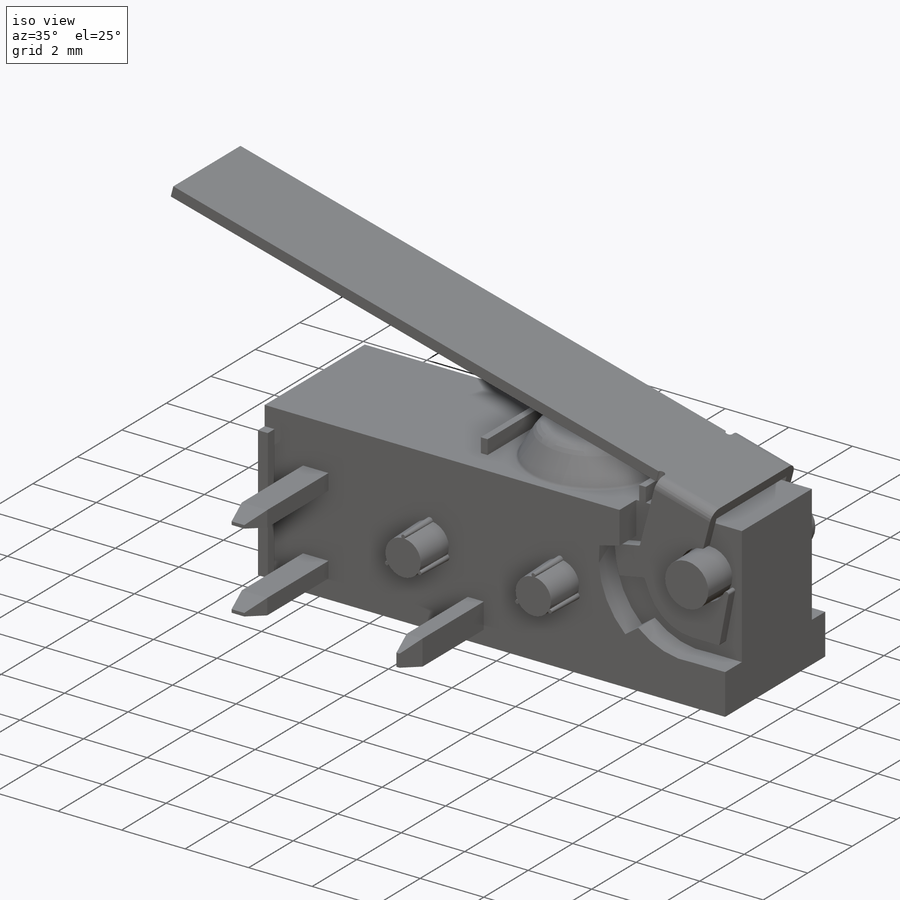
[diagram: iso view]
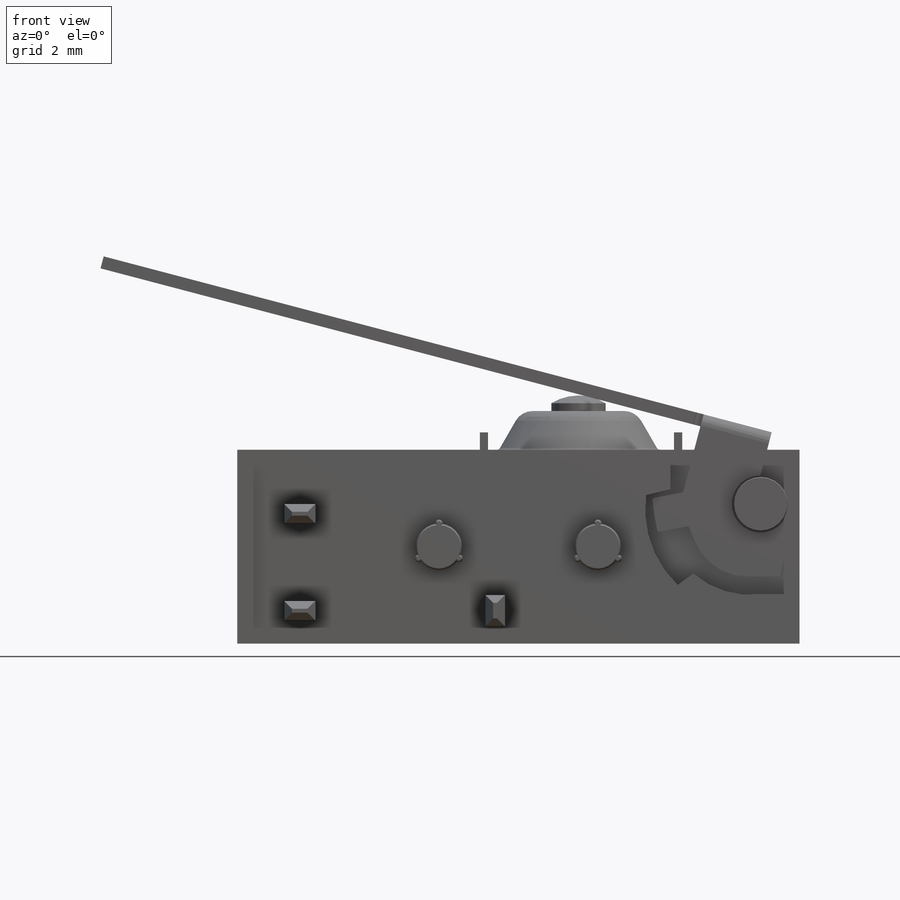
[diagram: front view]
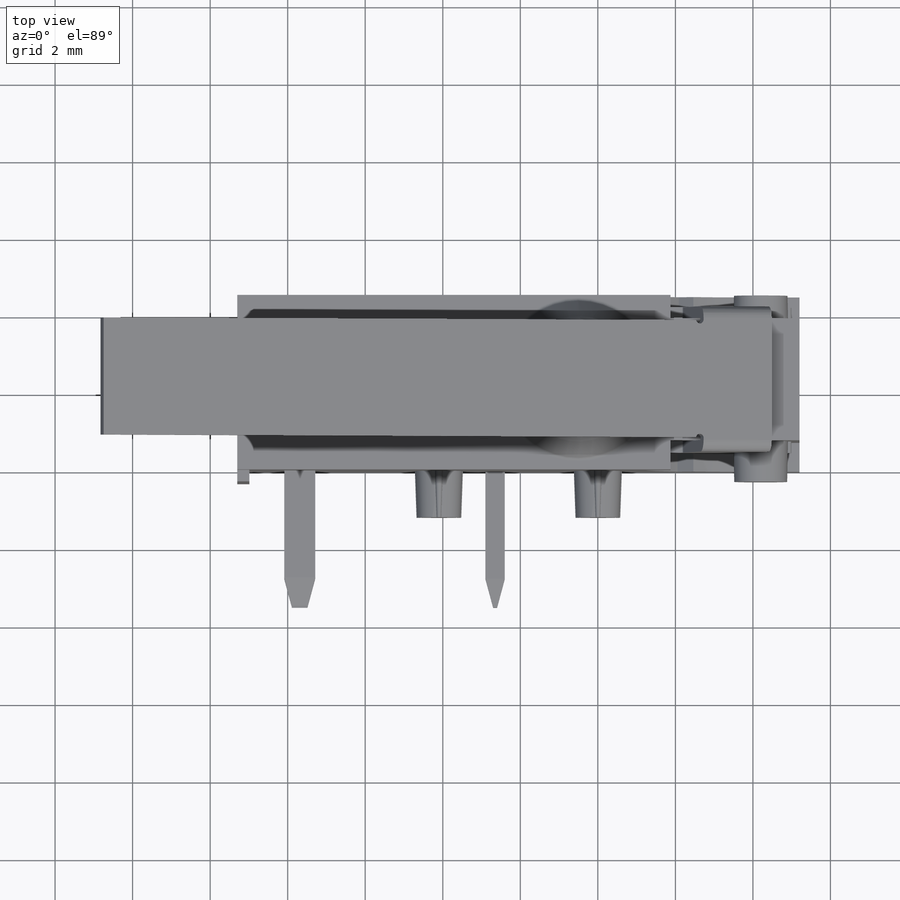
[diagram: top view]
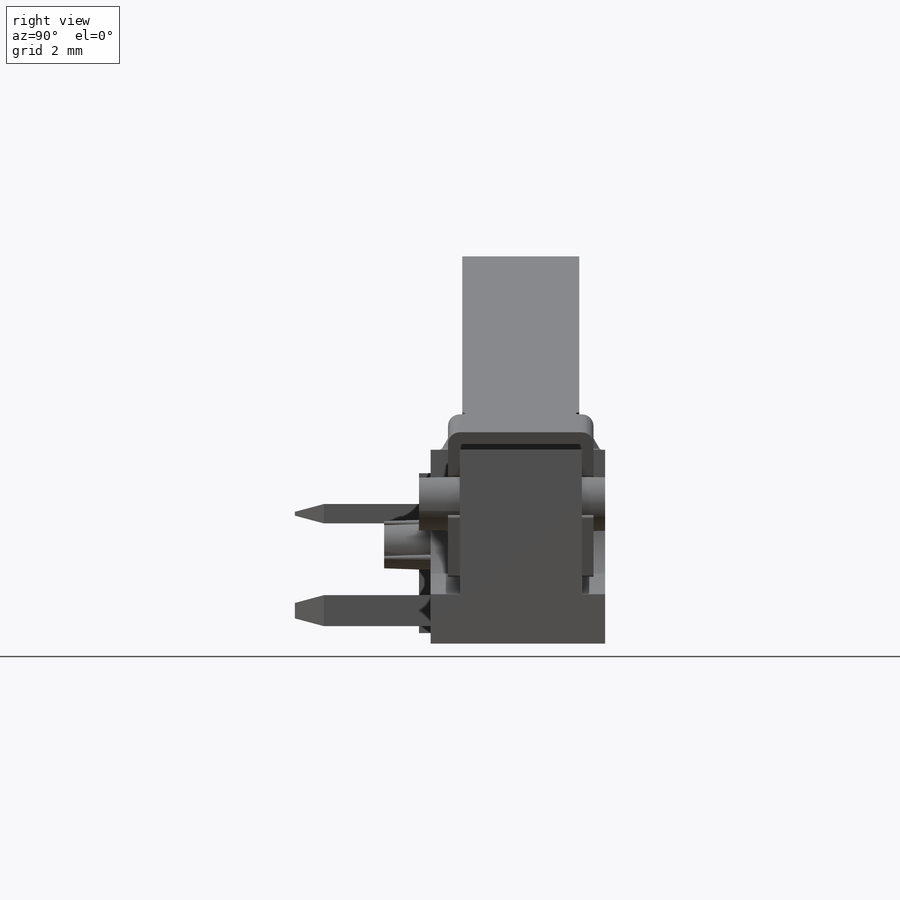
[diagram: right view]
SOLIDWORKS PART (.sldprt)
format: sldprt  version: not decoded by parser v0  size: 693,760 bytes
history: native  units: mm
features: sketch x16, extrude x12, cut_extrude x4, chamfer x3, fillet x3, material x1, dome x1, plane x1, pattern_linear x1 (+12 scaffold rows collapsed)
feature tree (54):
  scaffold x12  (default folders/planes/origin — collapsed)
  material  "Material <not specified>"
  sketch  "Sketch1"  dims[D1=2.5mm D2=5.2mm D3=5.0mm D4=14.5mm]
  extrude  "Boss-Extrude1"  Depth=4.5mm
  sketch  "Sketch2"  dims[c1.D1=1.4mm c1.D2=120.0deg c1.D3=0.6mm c1.D4=4.1mm c2.D1=3.0]
  extrude  "Boss-Extrude3"  Depth=1.2mm
  sketch  "Sketch3"  dims[c1.D3=0.25mm c1.D4=0.4mm c1.D1=2.65mm c1.D2=0.85mm c2.D1=2.5mm]
  extrude  "Boss-Extrude4"  Depth=3.5mm
  chamfer  "Chamfer1"  Distance=0.2mm Angle=75deg
  chamfer  "Chamfer2"  Distance=0.2mm Angle=75deg
  chamfer  "Chamfer3"  Distance=0.2mm Angle=75deg
  sketch  "Sketch5"
  cut_extrude  "Cut-Extrude1"  Depth=0.75mm
  sketch  "Sketch6"  dims[D3=~0.595701mm D1=4.2mm D2=1.4mm]
  extrude  "Boss-Extrude6"  Depth=1.05mm
  sketch  "Sketch7"
  cut_extrude  "Cut-Extrude2"  Depth=0.6mm
  sketch  "Sketch8"  dims[D1=0.0mm]
  extrude  "Boss-Extrude7"  Depth=0.6mm
  sketch  "Sketch9"  dims[D2=0.7mm D1=4.7mm]
  extrude  "Boss-Extrude8"  Depth=1mm
  fillet  "Fillet1"  Radius=0.5mm
  fillet  "Fillet2"  Radius=0.1mm
  sketch  "Sketch10"  dims[D1=0.7mm]
  cut_extrude  "Cut-Extrude3"  Depth=0.2mm
  sketch  "Sketch11"  dims[D1=~0.43425mm]
  extrude  "Boss-Extrude9"  Depth=0.4mm
  dome  "Dome1"
  sketch  "Sketch12"  dims[D1=4.8mm D2=0.21mm D3=0.21mm]
  extrude  "Boss-Extrude10"  Depth=0.45mm
  sketch  "Sketch14"
  extrude  "Boss-Extrude11"  Depth=0.3mm
  sketch  "Sketch16"
  extrude  "Boss-Extrude12"  Depth=0.3mm
  plane  "Plane1"  Offset=2.33mm
  pattern_linear  "LPattern1"  Count1=2 Count2=1 Spacing1=3.45mm Spacing2=50mm
  sketch  "Sketch17"  dims[D1=0.32mm]
  extrude  "Boss-Extrude13"  [1 undecoded]
  sketch  "Sketch18"  dims[D1=0.32mm]
  extrude  "Boss-Extrude14"  Depth=16mm
  sketch  "Sketch22"  dims[D1=0.2mm D2=0.2mm D3=3.02mm]
  cut_extrude  "Cut-Extrude4"  [1 undecoded]
  fillet  "Fillet3"  Radius=0.3mm
decode coverage: 33 of 40 modeling features carry decoded parameters
note: ~ marks probable driven/reference dimensions
note: 2 parameter values undecoded
note: suppression state not decoded; provenance and decode notes live in map.json
